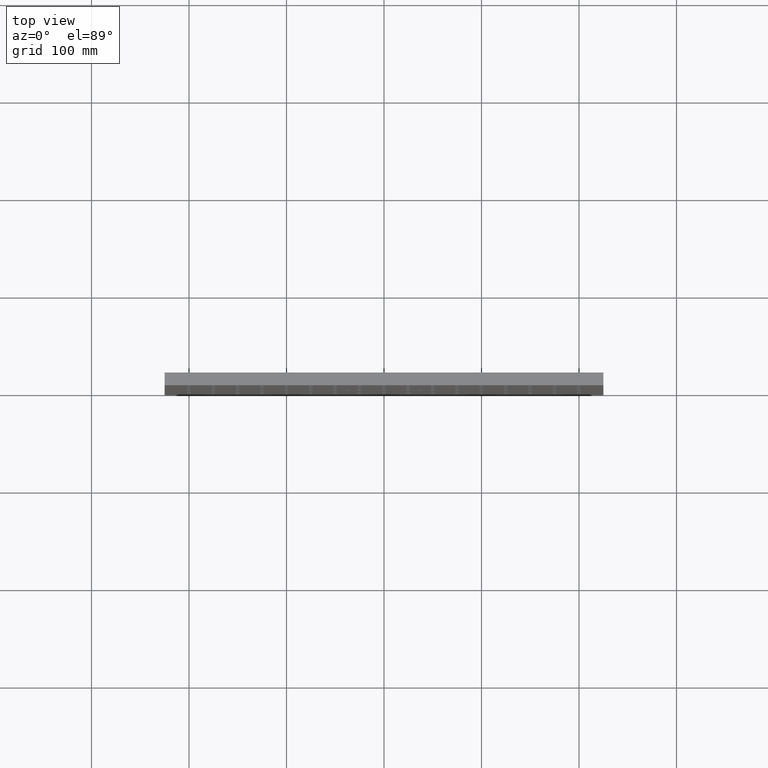
[diagram: clean part render]
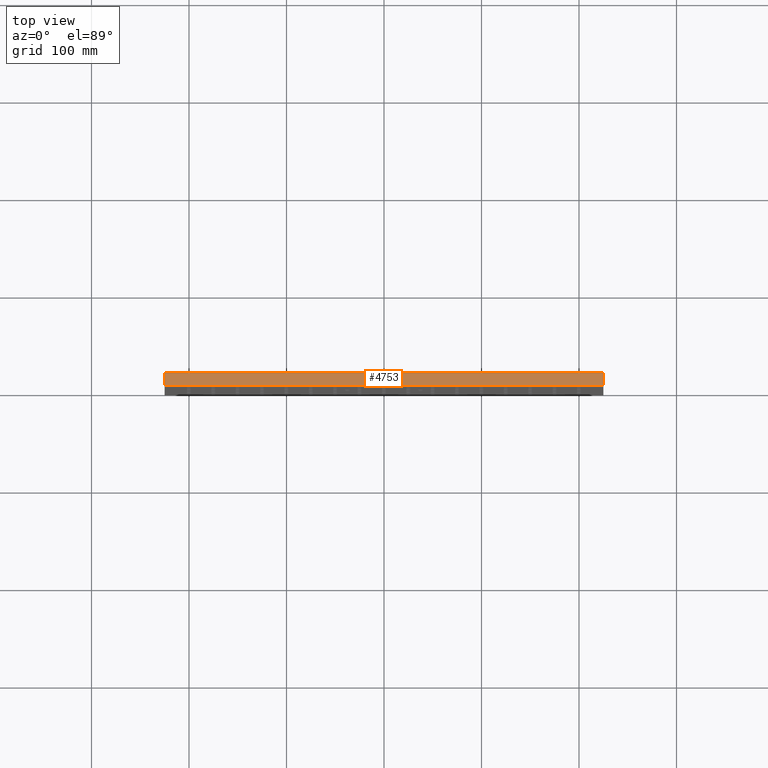
[diagram: same view with one face highlighted and labeled with its STEP entity id]
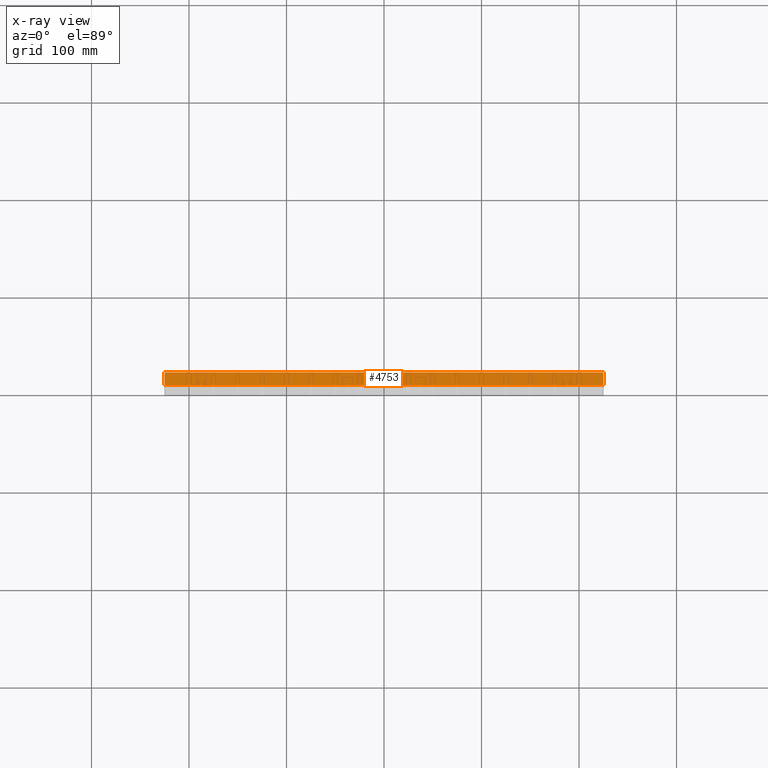
[diagram: x-ray of the same camera — body ghosted, the highlighted face saturated]
A machine part, top view. The second image highlights one B-rep face of the part: STEP entity #4753.
The next image is the same camera in x-ray: the body ghosted, the highlighted face saturated — about 0% of this face is hidden behind the body in this view.
In plain terms, the highlighted planar face has unit normal (0, 0, -1).
Its self-contained STEP definition (entity closure, byte-faithful):
#466 = EDGE_LOOP ( 'NONE', ( #12078, #1227, #12721, #13805 ) ) ;
#659 = VERTEX_POINT ( 'NONE', #10722 ) ;
#702 = DIRECTION ( 'NONE',  ( -0.000000000000000000, -1.000000000000000000, -0.000000000000000000 ) ) ;
#1010 = EDGE_CURVE ( 'NONE', #659, #13014, #5673, .T. ) ;
#1227 = ORIENTED_EDGE ( 'NONE', *, *, #13290, .F. ) ;
#2368 = FACE_OUTER_BOUND ( 'NONE', #466, .T. ) ;
#3518 = VECTOR ( 'NONE', #7080, 1000.000000000000000 ) ;
#4025 = CARTESIAN_POINT ( 'NONE',  ( -224.9999999999998863, 13.00000000000000178, 300.0000000000000000 ) ) ;
#4034 = LINE ( 'NONE', #9292, #3518 ) ;
#4304 = VERTEX_POINT ( 'NONE', #8161 ) ;
#4729 = PLANE ( 'NONE',  #6923 ) ;
#4753 = ADVANCED_FACE ( 'NONE', ( #2368 ), #4729, .F. ) ;
#4839 = LINE ( 'NONE', #13605, #8805 ) ;
#5673 = LINE ( 'NONE', #4025, #7960 ) ;
#6782 = CARTESIAN_POINT ( 'NONE',  ( -224.9999999999998863, 13.00000000000000178, 300.0000000000000000 ) ) ;
#6923 = AXIS2_PLACEMENT_3D ( 'NONE', #6782, #13259, #7848 ) ;
#7080 = DIRECTION ( 'NONE',  ( 1.000000000000000000, 0.000000000000000000, -0.000000000000000000 ) ) ;
#7540 = CARTESIAN_POINT ( 'NONE',  ( 225.0000000000000568, 13.00000000000000178, 300.0000000000000000 ) ) ;
#7665 = CARTESIAN_POINT ( 'NONE',  ( -224.9999999999999147, 13.00000000000000178, 300.0000000000000000 ) ) ;
#7848 = DIRECTION ( 'NONE',  ( -1.000000000000000000, 0.000000000000000000, -0.000000000000000000 ) ) ;
#7960 = VECTOR ( 'NONE', #8354, 1000.000000000000000 ) ;
#8161 = CARTESIAN_POINT ( 'NONE',  ( 225.0000000000000568, 0.000000000000000000, 300.0000000000000000 ) ) ;
#8354 = DIRECTION ( 'NONE',  ( 0.000000000000000000, 1.000000000000000000, 0.000000000000000000 ) ) ;
#8805 = VECTOR ( 'NONE', #10184, 1000.000000000000000 ) ;
#9223 = EDGE_CURVE ( 'NONE', #12945, #4304, #9681, .T. ) ;
#9292 = CARTESIAN_POINT ( 'NONE',  ( 0.000000000000000000, 13.00000000000000178, 300.0000000000000000 ) ) ;
#9681 = LINE ( 'NONE', #7540, #11683 ) ;
#10184 = DIRECTION ( 'NONE',  ( -1.000000000000000000, -0.000000000000000000, 0.000000000000000000 ) ) ;
#10722 = CARTESIAN_POINT ( 'NONE',  ( -224.9999999999999147, 0.000000000000000000, 300.0000000000000000 ) ) ;
#11142 = EDGE_CURVE ( 'NONE', #4304, #659, #4839, .T. ) ;
#11683 = VECTOR ( 'NONE', #702, 1000.000000000000000 ) ;
#12078 = ORIENTED_EDGE ( 'NONE', *, *, #9223, .F. ) ;
#12721 = ORIENTED_EDGE ( 'NONE', *, *, #1010, .F. ) ;
#12799 = CARTESIAN_POINT ( 'NONE',  ( 225.0000000000000568, 13.00000000000000178, 300.0000000000000000 ) ) ;
#12945 = VERTEX_POINT ( 'NONE', #12799 ) ;
#13014 = VERTEX_POINT ( 'NONE', #7665 ) ;
#13259 = DIRECTION ( 'NONE',  ( 0.000000000000000000, 0.000000000000000000, -1.000000000000000000 ) ) ;
#13290 = EDGE_CURVE ( 'NONE', #13014, #12945, #4034, .T. ) ;
#13605 = CARTESIAN_POINT ( 'NONE',  ( 0.000000000000000000, 0.000000000000000000, 300.0000000000000000 ) ) ;
#13805 = ORIENTED_EDGE ( 'NONE', *, *, #11142, .F. ) ;